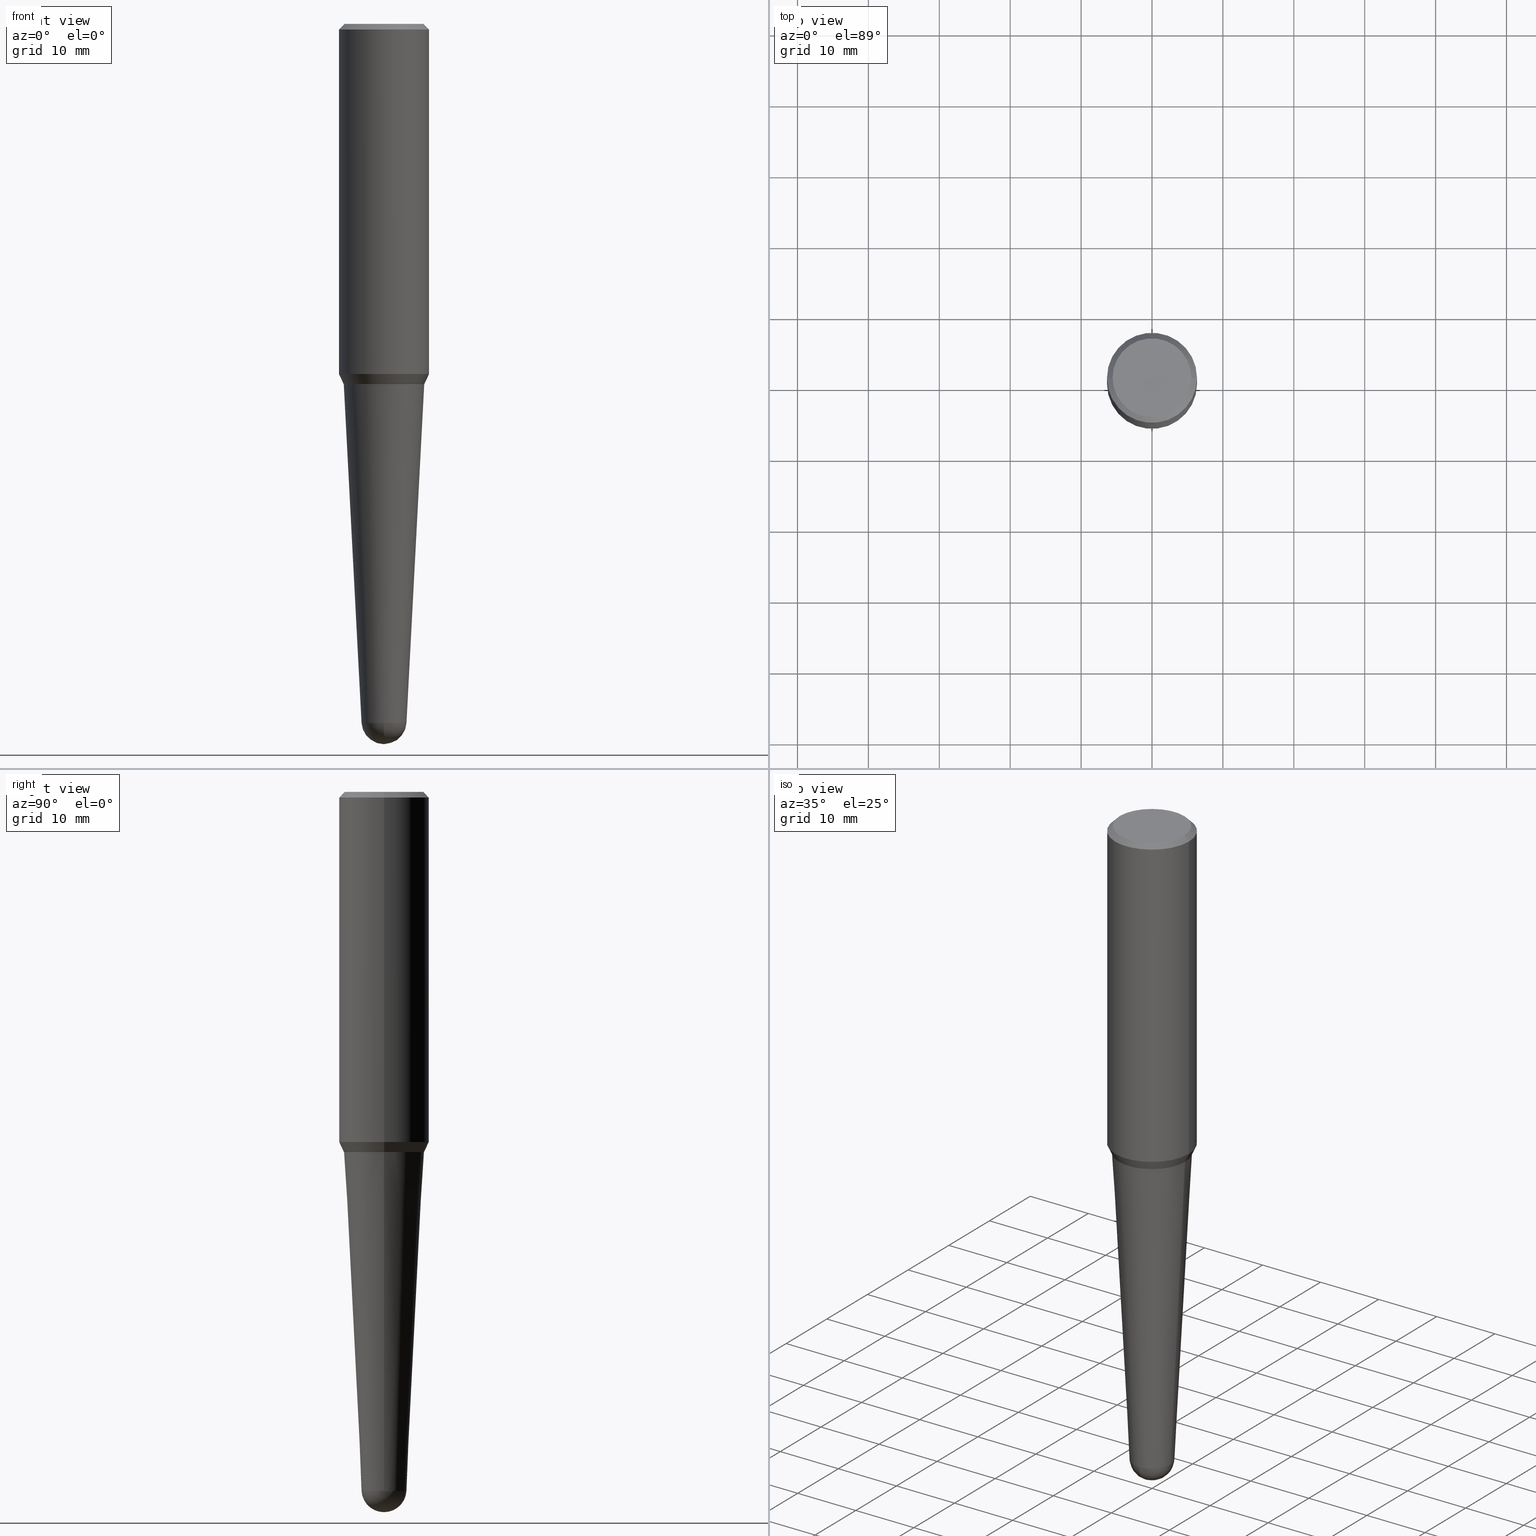
[diagram: canonical four-view strip — front | top / right | iso, engineering-drawing reading convention]
A machine part, canonical four-view strip (front | top / right | iso — engineering-drawing reading convention). The complete STEP part file that produces these views, byte-faithful:
ISO-10303-21;
HEADER;
FILE_DESCRIPTION (( 'STEP AP203' ),
    '1' );
FILE_NAME ('32486.STEP',
    '2024-03-04T15:26:53',
    ( '' ),
    ( '' ),
    'SwSTEP 2.0',
    'SolidWorks 2023',
    '' );
FILE_SCHEMA (( 'CONFIG_CONTROL_DESIGN' ));
ENDSEC;

DATA;
#1 = CARTESIAN_POINT ( 'NONE',  ( 8.716740962533960207E-16, 0.1248286918443085453, -3.881541994530368633 ) ) ;
#2 = ORIENTED_EDGE ( 'NONE', *, *, #371, .F. ) ;
#3 = CARTESIAN_POINT ( 'NONE',  ( -8.869612020440932231E-16, -0.1248286918443352322, -3.881541994530367301 ) ) ;
#4 = VECTOR ( 'NONE', #54, 39.37007874015748854 ) ;
#5 = VERTEX_POINT ( 'NONE', #440 ) ;
#6 = DIRECTION ( 'NONE',  ( 0.7071067811865474617, -2.468850131082256666E-15, 0.7071067811865474617 ) ) ;
#7 = EDGE_LOOP ( 'NONE', ( #44, #151 ) ) ;
#8 = DIRECTION ( 'NONE',  ( -1.000000000000000000, 6.982962677686265922E-15, -4.876176775795935793E-29 ) ) ;
#9 = ORIENTED_EDGE ( 'NONE', *, *, #235, .T. ) ;
#10 = CARTESIAN_POINT ( 'NONE',  ( -0.2239361294054428020, -5.389151550279469885E-15, -2.000000000000000000 ) ) ;
#11 = AXIS2_PLACEMENT_3D ( 'NONE', #27, #342, #416 ) ;
#12 = ORIENTED_EDGE ( 'NONE', *, *, #67, .F. ) ;
#13 = CARTESIAN_POINT ( 'NONE',  ( 9.492189867521652556E-29, -1.355233143983878169E-14, -3.881541994530368189 ) ) ;
#14 = ORIENTED_EDGE ( 'NONE', *, *, #386, .F. ) ;
#15 = ORIENTED_EDGE ( 'NONE', *, *, #218, .F. ) ;
#16 = PERSON_AND_ORGANIZATION ( #69, #143 ) ;
#17 = FACE_OUTER_BOUND ( 'NONE', #156, .T. ) ;
#18 = ORIENTED_EDGE ( 'NONE', *, *, #154, .F. ) ;
#19 = EDGE_CURVE ( 'NONE', #383, #5, #138, .T. ) ;
#20 = PERSON_AND_ORGANIZATION ( #69, #143 ) ;
#21 = PRODUCT_DEFINITION ( 'UNKNOWN', '', #387, #425 ) ;
#22 = CARTESIAN_POINT ( 'NONE',  ( 7.642090019328565002E-31, -1.091087918388484967E-16, -0.03125000000000005551 ) ) ;
#23 = CONICAL_SURFACE ( 'NONE', #452, 0.2239361294054428020, 0.7853981633974482790 ) ;
#24 = DIRECTION ( 'NONE',  ( 1.000000000000000000, -6.982962677686266711E-15, 4.880466792705916279E-29 ) ) ;
#25 = DIRECTION ( 'NONE',  ( -2.445468806185136597E-29, 3.491481338843145583E-15, 1.000000000000000000 ) ) ;
#26 = DIRECTION ( 'NONE',  ( 0.7071067811865489050, -7.319954787623260779E-15, -0.7071067811865461294 ) ) ;
#27 = CARTESIAN_POINT ( 'NONE',  ( 4.890937612370273194E-29, -6.982962677686291165E-15, -2.000000000000000000 ) ) ;
#28 = CONICAL_SURFACE ( 'NONE', #449, 0.2500000000000000000, 0.7853981633974502774 ) ;
#29 = CARTESIAN_POINT ( 'NONE',  ( -0.2500000000000001110, 1.776356839400253620E-15, 5.931196827434174486E-16 ) ) ;
#30 = EDGE_CURVE ( 'NONE', #258, #359, #417, .T. ) ;
#31 = DIRECTION ( 'NONE',  ( 1.000000000000000000, -6.982962677686265922E-15, 0.000000000000000000 ) ) ;
#32 = EDGE_CURVE ( 'NONE', #5, #92, #91, .T. ) ;
#33 = CIRCLE ( 'NONE', #303, 0.2244361294054426914 ) ;
#34 = DIRECTION ( 'NONE',  ( -2.445468806185136877E-29, 3.491481338843145188E-15, 1.000000000000000000 ) ) ;
#35 = ORIENTED_EDGE ( 'NONE', *, *, #166, .F. ) ;
#36 = LINE ( 'NONE', #458, #252 ) ;
#37 = ORIENTED_EDGE ( 'NONE', *, *, #335, .F. ) ;
#38 = CARTESIAN_POINT ( 'NONE',  ( 4.890937612370273194E-29, -6.982962677686291165E-15, -2.000000000000000000 ) ) ;
#39 = PERSON_AND_ORGANIZATION ( #69, #143 ) ;
#40 = FACE_OUTER_BOUND ( 'NONE', #428, .T. ) ;
#41 = VECTOR ( 'NONE', #79, 39.37007874015748854 ) ;
#42 = CARTESIAN_POINT ( 'NONE',  ( 0.2500000000000001110, -1.745740669421565494E-15, 5.931196827434418047E-16 ) ) ;
#43 = CIRCLE ( 'NONE', #247, 0.2187500000000002498 ) ;
#44 = ORIENTED_EDGE ( 'NONE', *, *, #408, .T. ) ;
#45 = PERSON_AND_ORGANIZATION ( #69, #143 ) ;
#46 = ADVANCED_FACE ( 'NONE', ( #94 ), #85, .T. ) ;
#47 = ORIENTED_EDGE ( 'NONE', *, *, #459, .T. ) ;
#48 = DIRECTION ( 'NONE',  ( 1.000000000000000000, -6.982962677686265133E-15, 0.000000000000000000 ) ) ;
#49 = LOCAL_TIME ( 10, 26, 53.00000000000000000, #405 ) ;
#50 = EDGE_LOOP ( 'NONE', ( #398, #292, #308, #129, #208 ) ) ;
#51 = CALENDAR_DATE ( 2024, 4, 3 ) ;
#52 = ORIENTED_EDGE ( 'NONE', *, *, #371, .T. ) ;
#53 = CARTESIAN_POINT ( 'NONE',  ( 0.000000000000000000, 0.000000000000000000, 0.000000000000000000 ) ) ;
#54 = DIRECTION ( 'NONE',  ( -0.7071067811865474617, 7.493145998870352582E-15, 0.7071067811865474617 ) ) ;
#55 = PERSON_AND_ORGANIZATION_ROLE ( 'design_owner' ) ;
#56 = CARTESIAN_POINT ( 'NONE',  ( 9.770155035872819834E-29, -1.310851785081028701E-14, -3.875000000000000000 ) ) ;
#57 = AXIS2_PLACEMENT_3D ( 'NONE', #145, #419, #108 ) ;
#58 = CC_DESIGN_APPROVAL ( #341, ( #21 ) ) ;
#59 = DIRECTION ( 'NONE',  ( -2.445468806185136597E-29, 3.491481338843145583E-15, 1.000000000000000000 ) ) ;
#60 = AXIS2_PLACEMENT_3D ( 'NONE', #162, #59, #192 ) ;
#61 = DIRECTION ( 'NONE',  ( -1.000000000000000000, 6.982962677686266711E-15, 0.000000000000000000 ) ) ;
#62 = ADVANCED_FACE ( 'NONE', ( #99 ), #28, .T. ) ;
#63 = CARTESIAN_POINT ( 'NONE',  ( 0.2500000000000000000, -1.854849461260415384E-15, -0.03125000000000005551 ) ) ;
#64 = CIRCLE ( 'NONE', #110, 0.2239361294054428020 ) ;
#65 = LOCAL_TIME ( 10, 26, 53.00000000000000000, #368 ) ;
#66 = DIRECTION ( 'NONE',  ( -2.445468806185136597E-29, 3.491481338843145583E-15, 1.000000000000000000 ) ) ;
#67 = EDGE_CURVE ( 'NONE', #400, #317, #43, .T. ) ;
#68 = DIRECTION ( 'NONE',  ( -2.445468806185136597E-29, 3.491481338843145583E-15, 1.000000000000000000 ) ) ;
#69 = PERSON ( 'UNSPECIFIED', 'UNSPECIFIED', 'UNSPECIFIED', ('UNSPECIFIED'), ('UNSPECIFIED'), ('UNSPECIFIED') ) ;
#70 = DIRECTION ( 'NONE',  ( 1.000000000000000000, -6.982962677686264344E-15, 0.000000000000000000 ) ) ;
#71 = EDGE_LOOP ( 'NONE', ( #9, #273, #35, #186 ) ) ;
#72 = AXIS2_PLACEMENT_3D ( 'NONE', #246, #282, #160 ) ;
#73 = VECTOR ( 'NONE', #424, 39.37007874015748143 ) ;
#74 = SPHERICAL_SURFACE ( 'NONE', #360, 0.1249999999999999029 ) ;
#75 = CARTESIAN_POINT ( 'NONE',  ( -0.2244361294054426914, -5.386502323105358684E-15, -1.999500000000000055 ) ) ;
#76 = ORIENTED_EDGE ( 'NONE', *, *, #204, .F. ) ;
#77 = CARTESIAN_POINT ( 'NONE',  ( 0.2187500000000002498, -1.662483614147128641E-15, -4.394532330998037149E-16 ) ) ;
#78 = ORIENTED_EDGE ( 'NONE', *, *, #299, .T. ) ;
#79 = DIRECTION ( 'NONE',  ( -0.4226182617406884501, 6.167240084480778447E-15, 0.9063077870366550437 ) ) ;
#80 = CIRCLE ( 'NONE', #238, 0.1249999999999999029 ) ;
#81 = ORIENTED_EDGE ( 'NONE', *, *, #148, .F. ) ;
#82 = EDGE_CURVE ( 'NONE', #391, #137, #191, .T. ) ;
#83 = EDGE_CURVE ( 'NONE', #251, #333, #334, .T. ) ;
#84 = PLANE ( 'NONE',  #265 ) ;
#85 = CONICAL_SURFACE ( 'NONE', #454, 0.1248286918443221316, 0.05235987755982991765 ) ;
#86 = APPROVAL_STATUS ( 'not_yet_approved' ) ;
#87 = CARTESIAN_POINT ( 'NONE',  ( 4.890937612370273194E-29, -6.982962677686291165E-15, -2.000000000000000000 ) ) ;
#88 = EDGE_LOOP ( 'NONE', ( #188, #222, #76, #126 ) ) ;
#89 = APPROVAL_DATE_TIME ( #399, #184 ) ;
#90 = ORIENTED_EDGE ( 'NONE', *, *, #315, .F. ) ;
#91 = LINE ( 'NONE', #95, #380 ) ;
#92 = VERTEX_POINT ( 'NONE', #168 ) ;
#93 = DATE_TIME_ROLE ( 'creation_date' ) ;
#94 = FACE_OUTER_BOUND ( 'NONE', #347, .T. ) ;
#95 = CARTESIAN_POINT ( 'NONE',  ( 0.1248286918443221316, -1.442400553609208551E-14, -3.881541994530368189 ) ) ;
#96 = CONICAL_SURFACE ( 'NONE', #136, 0.2239361294054428020, 0.7853981633974482790 ) ;
#97 = CC_DESIGN_APPROVAL ( #184, ( #387 ) ) ;
#98 = EDGE_CURVE ( 'NONE', #357, #383, #241, .T. ) ;
#99 = FACE_OUTER_BOUND ( 'NONE', #325, .T. ) ;
#100 = CARTESIAN_POINT ( 'NONE',  ( -0.2239361294054428020, -5.391800777453579508E-15, -2.000000000000000000 ) ) ;
#101 = AXIS2_PLACEMENT_3D ( 'NONE', #53, #161, #323 ) ;
#102 = DIRECTION ( 'NONE',  ( 1.000000000000000000, -6.982962677686266711E-15, 0.000000000000000000 ) ) ;
#103 = EDGE_CURVE ( 'NONE', #216, #251, #144, .T. ) ;
#104 = CC_DESIGN_PERSON_AND_ORGANIZATION_ASSIGNMENT ( #155, #152, ( #387 ) ) ;
#105 = AXIS2_PLACEMENT_3D ( 'NONE', #107, #236, #174 ) ;
#106 = CARTESIAN_POINT ( 'NONE',  ( 4.889714877967180392E-29, -6.981216937016869662E-15, -1.999500000000000055 ) ) ;
#107 = CARTESIAN_POINT ( 'NONE',  ( 7.642090019328565002E-31, -1.091087918388484967E-16, -0.03125000000000005551 ) ) ;
#108 = DIRECTION ( 'NONE',  ( 1.000000000000000000, -6.982962677686265922E-15, 0.000000000000000000 ) ) ;
#109 = EDGE_LOOP ( 'NONE', ( #433, #278, #37, #114 ) ) ;
#110 = AXIS2_PLACEMENT_3D ( 'NONE', #171, #300, #304 ) ;
#111 = DIRECTION ( 'NONE',  ( 6.982962677686265922E-15, 1.000000000000000000, -4.370956789862825094E-15 ) ) ;
#112 = ORIENTED_EDGE ( 'NONE', *, *, #30, .T. ) ;
#113 = DIRECTION ( 'NONE',  ( -2.445468806185136597E-29, 3.491481338843145583E-15, 1.000000000000000000 ) ) ;
#114 = ORIENTED_EDGE ( 'NONE', *, *, #19, .F. ) ;
#115 = CALENDAR_DATE ( 2024, 4, 3 ) ;
#116 = ADVANCED_FACE ( 'NONE', ( #135 ), #96, .T. ) ;
#117 = EDGE_LOOP ( 'NONE', ( #364, #354 ) ) ;
#118 = EDGE_CURVE ( 'NONE', #391, #447, #412, .T. ) ;
#119 = DATE_AND_TIME ( #115, #372 ) ;
#120 = AXIS2_PLACEMENT_3D ( 'NONE', #259, #132, #228 ) ;
#121 = LOCAL_TIME ( 10, 26, 53.00000000000000000, #322 ) ;
#122 = EDGE_LOOP ( 'NONE', ( #14, #311, #159, #2 ) ) ;
#123 = FACE_OUTER_BOUND ( 'NONE', #88, .T. ) ;
#124 = CLOSED_SHELL ( 'NONE', ( #62, #446, #393, #116, #373, #226, #279, #176, #140, #418 ) ) ;
#125 = CARTESIAN_POINT ( 'NONE',  ( 5.373345866614013448E-45, -7.671713813311452234E-31, -2.197266165499074041E-16 ) ) ;
#126 = ORIENTED_EDGE ( 'NONE', *, *, #459, .F. ) ;
#127 = APPROVAL_STATUS ( 'not_yet_approved' ) ;
#128 = AXIS2_PLACEMENT_3D ( 'NONE', #139, #421, #346 ) ;
#129 = ORIENTED_EDGE ( 'NONE', *, *, #32, .T. ) ;
#130 = ORIENTED_EDGE ( 'NONE', *, *, #299, .F. ) ;
#131 = PERSON_AND_ORGANIZATION_ROLE ( 'creator' ) ;
#132 = DIRECTION ( 'NONE',  ( -2.445468806185136597E-29, 3.491481338843145583E-15, 1.000000000000000000 ) ) ;
#133 = CARTESIAN_POINT ( 'NONE',  ( 4.890937612370273194E-29, -6.982962677686291165E-15, -2.000000000000000000 ) ) ;
#134 = ADVANCED_FACE ( 'NONE', ( #261 ), #369, .F. ) ;
#135 = FACE_OUTER_BOUND ( 'NONE', #179, .T. ) ;
#136 = AXIS2_PLACEMENT_3D ( 'NONE', #133, #167, #297 ) ;
#137 = VERTEX_POINT ( 'NONE', #376 ) ;
#138 = CIRCLE ( 'NONE', #215, 0.1248286918443221316 ) ;
#139 = CARTESIAN_POINT ( 'NONE',  ( 9.492189867521652556E-29, -1.355233143983878169E-14, -3.881541994530368189 ) ) ;
#140 = ADVANCED_FACE ( 'NONE', ( #17 ), #211, .T. ) ;
#141 = DIRECTION ( 'NONE',  ( -0.7071067811865489050, 2.468850131082271655E-15, -0.7071067811865461294 ) ) ;
#142 = PRODUCT ( '32486', '32486', '', ( #326 ) ) ;
#143 = ORGANIZATION ( 'UNSPECIFIED', 'UNSPECIFIED', '' ) ;
#144 = CIRCLE ( 'NONE', #287, 0.1248286918443221316 ) ;
#145 = CARTESIAN_POINT ( 'NONE',  ( 4.889714877967180392E-29, -6.981216937016869662E-15, -1.999500000000000055 ) ) ;
#146 = DIRECTION ( 'NONE',  ( 6.982962677686265922E-15, 1.000000000000000000, 0.000000000000000000 ) ) ;
#147 = ORIENTED_EDGE ( 'NONE', *, *, #335, .T. ) ;
#148 = EDGE_CURVE ( 'NONE', #400, #359, #200, .T. ) ;
#149 = DIRECTION ( 'NONE',  ( 1.000000000000000000, -6.982962677686266711E-15, 4.880466792705916279E-29 ) ) ;
#150 = DIRECTION ( 'NONE',  ( 1.000000000000000000, -6.982962677686269866E-15, 0.000000000000000000 ) ) ;
#151 = ORIENTED_EDGE ( 'NONE', *, *, #277, .T. ) ;
#152 = PERSON_AND_ORGANIZATION_ROLE ( 'creator' ) ;
#153 = ADVANCED_FACE ( 'NONE', ( #445 ), #422, .T. ) ;
#154 = EDGE_CURVE ( 'NONE', #357, #216, #80, .T. ) ;
#155 = PERSON_AND_ORGANIZATION ( #69, #143 ) ;
#156 = EDGE_LOOP ( 'NONE', ( #81, #15, #78, #112 ) ) ;
#157 = FACE_OUTER_BOUND ( 'NONE', #177, .T. ) ;
#158 = AXIS2_PLACEMENT_3D ( 'NONE', #209, #397, #313 ) ;
#159 = ORIENTED_EDGE ( 'NONE', *, *, #248, .T. ) ;
#160 = DIRECTION ( 'NONE',  ( 1.000000000000000000, -6.982962677686265922E-15, 0.000000000000000000 ) ) ;
#161 = DIRECTION ( 'NONE',  ( 0.000000000000000000, 0.000000000000000000, 1.000000000000000000 ) ) ;
#162 = CARTESIAN_POINT ( 'NONE',  ( 4.890937612370273194E-29, -6.982962677686291165E-15, -2.000000000000000000 ) ) ;
#163 = VECTOR ( 'NONE', #263, 39.37007874015748854 ) ;
#164 = CARTESIAN_POINT ( 'NONE',  ( 0.2500000000000000000, -1.824233291281731597E-15, -0.03125000000000005551 ) ) ;
#165 = DIRECTION ( 'NONE',  ( 1.000000000000000000, -6.982962677686266711E-15, 0.000000000000000000 ) ) ;
#166 = EDGE_CURVE ( 'NONE', #404, #219, #431, .T. ) ;
#167 = DIRECTION ( 'NONE',  ( -2.445468806185136597E-29, 3.491481338843145583E-15, 1.000000000000000000 ) ) ;
#168 = CARTESIAN_POINT ( 'NONE',  ( 0.2234361294054428293, -8.543208830171176949E-15, -2.000000000000000000 ) ) ;
#169 = AXIS2_PLACEMENT_3D ( 'NONE', #328, #230, #231 ) ;
#170 = CC_DESIGN_SECURITY_CLASSIFICATION ( #361, ( #387 ) ) ;
#171 = CARTESIAN_POINT ( 'NONE',  ( 4.890937612370273194E-29, -6.982962677686291165E-15, -2.000000000000000000 ) ) ;
#172 = DIRECTION ( 'NONE',  ( -2.445468806185136597E-29, 3.491481338843145583E-15, 1.000000000000000000 ) ) ;
#173 = ADVANCED_BREP_SHAPE_REPRESENTATION ( '32486', ( #414, #253, #101 ), #366 ) ;
#174 = DIRECTION ( 'NONE',  ( 1.000000000000000000, -6.982962677686266711E-15, 0.000000000000000000 ) ) ;
#175 = CARTESIAN_POINT ( 'NONE',  ( 4.890937612370273194E-29, -6.982962677686291165E-15, -2.000000000000000000 ) ) ;
#176 = ADVANCED_FACE ( 'NONE', ( #268 ), #298, .T. ) ;
#177 = EDGE_LOOP ( 'NONE', ( #90, #453 ) ) ;
#178 = FACE_OUTER_BOUND ( 'NONE', #109, .T. ) ;
#179 = EDGE_LOOP ( 'NONE', ( #437, #269, #284, #239 ) ) ;
#180 =( LENGTH_UNIT ( ) NAMED_UNIT ( * ) SI_UNIT ( $, .METRE. ) );
#181 = ORIENTED_EDGE ( 'NONE', *, *, #82, .T. ) ;
#182 = CC_DESIGN_PERSON_AND_ORGANIZATION_ASSIGNMENT ( #223, #55, ( #142 ) ) ;
#183 = PERSON_AND_ORGANIZATION ( #69, #143 ) ;
#184 = APPROVAL ( #127, 'UNSPECIFIED' ) ;
#185 = CYLINDRICAL_SURFACE ( 'NONE', #158, 0.2500000000000001110 ) ;
#186 = ORIENTED_EDGE ( 'NONE', *, *, #248, .F. ) ;
#187 = APPROVAL_DATE_TIME ( #119, #352 ) ;
#188 = ORIENTED_EDGE ( 'NONE', *, *, #166, .T. ) ;
#189 = VECTOR ( 'NONE', #26, 39.37007874015748143 ) ;
#190 = CARTESIAN_POINT ( 'NONE',  ( 0.2500000000000002776, -8.535547974688762814E-15, -1.944678102594958879 ) ) ;
#191 = CIRCLE ( 'NONE', #60, 0.2239361294054428020 ) ;
#192 = DIRECTION ( 'NONE',  ( 1.000000000000000000, -6.982962677686264344E-15, 0.000000000000000000 ) ) ;
#193 = DIRECTION ( 'NONE',  ( -2.445468806185136597E-29, 3.491481338843145583E-15, 1.000000000000000000 ) ) ;
#194 = ORIENTED_EDGE ( 'NONE', *, *, #407, .F. ) ;
#195 = CALENDAR_DATE ( 2024, 4, 3 ) ;
#196 = AXIS2_PLACEMENT_3D ( 'NONE', #307, #456, #378 ) ;
#197 = DIRECTION ( 'NONE',  ( 1.000000000000000000, -6.982962677686265922E-15, 4.883557194083112340E-29 ) ) ;
#198 = LOCAL_TIME ( 10, 26, 53.00000000000000000, #363 ) ;
#199 = DIRECTION ( 'NONE',  ( 1.000000000000000000, -6.982962677686269866E-15, 0.000000000000000000 ) ) ;
#200 = LINE ( 'NONE', #164, #189 ) ;
#201 = DIRECTION ( 'NONE',  ( -2.445468806185136597E-29, 3.491481338843145583E-15, 1.000000000000000000 ) ) ;
#202 = DIRECTION ( 'NONE',  ( -2.445468806185136597E-29, 3.491481338843145583E-15, 1.000000000000000000 ) ) ;
#203 = DIRECTION ( 'NONE',  ( -2.445468806185136597E-29, 3.491481338843145583E-15, 1.000000000000000000 ) ) ;
#204 = EDGE_CURVE ( 'NONE', #359, #258, #457, .T. ) ;
#205 = LINE ( 'NONE', #339, #163 ) ;
#206 = CIRCLE ( 'NONE', #271, 0.2500000000000002776 ) ;
#207 = CARTESIAN_POINT ( 'NONE',  ( 9.770155035872819834E-29, -1.310851785081028701E-14, -3.875000000000000000 ) ) ;
#208 = ORIENTED_EDGE ( 'NONE', *, *, #277, .F. ) ;
#209 = CARTESIAN_POINT ( 'NONE',  ( -1.450455682483482035E-44, 2.070866303999251778E-30, 5.931196827434296760E-16 ) ) ;
#210 = UNCERTAINTY_MEASURE_WITH_UNIT (LENGTH_MEASURE( 1.000000000000000082E-05 ), #353, 'distance_accuracy_value', 'NONE');
#211 = CONICAL_SURFACE ( 'NONE', #385, 0.2500000000000000000, 0.7853981633974502774 ) ;
#212 = SHAPE_DEFINITION_REPRESENTATION ( #381, #173 ) ;
#213 = LENGTH_MEASURE_WITH_UNIT ( LENGTH_MEASURE( 0.02539999999999999897 ), #180 );
#214 = ORIENTED_EDGE ( 'NONE', *, *, #32, .F. ) ;
#215 = AXIS2_PLACEMENT_3D ( 'NONE', #229, #409, #403 ) ;
#216 = VERTEX_POINT ( 'NONE', #1 ) ;
#217 = CARTESIAN_POINT ( 'NONE',  ( 9.770155035872819834E-29, -1.310851785081028701E-14, -3.875000000000000000 ) ) ;
#218 = EDGE_CURVE ( 'NONE', #317, #400, #233, .T. ) ;
#219 = VERTEX_POINT ( 'NONE', #343 ) ;
#220 = VECTOR ( 'NONE', #6, 39.37007874015748854 ) ;
#221 = APPLICATION_PROTOCOL_DEFINITION ( 'international standard', 'config_control_design', 1994, #331 ) ;
#222 = ORIENTED_EDGE ( 'NONE', *, *, #295, .T. ) ;
#223 = PERSON_AND_ORGANIZATION ( #69, #143 ) ;
#224 = CARTESIAN_POINT ( 'NONE',  ( 1.074669173322802939E-44, -1.534342762662290622E-30, -4.394532330998148576E-16 ) ) ;
#225 = CC_DESIGN_PERSON_AND_ORGANIZATION_ASSIGNMENT ( #256, #131, ( #21 ) ) ;
#226 = ADVANCED_FACE ( 'NONE', ( #382 ), #23, .T. ) ;
#227 = APPROVAL_ROLE ( '' ) ;
#228 = DIRECTION ( 'NONE',  ( 1.000000000000000000, -6.982962677686269866E-15, 0.000000000000000000 ) ) ;
#229 = CARTESIAN_POINT ( 'NONE',  ( 9.492189867521652556E-29, -1.355233143983878169E-14, -3.881541994530368189 ) ) ;
#230 = DIRECTION ( 'NONE',  ( 2.438088387897960049E-29, -3.491481338843145188E-15, -1.000000000000000000 ) ) ;
#231 = DIRECTION ( 'NONE',  ( -1.000000000000000000, 6.982962677686265922E-15, -4.876176775795935793E-29 ) ) ;
#232 = CARTESIAN_POINT ( 'NONE',  ( -0.2500000000000000000, -1.673101209152769590E-15, -0.03125000000000005551 ) ) ;
#233 = CIRCLE ( 'NONE', #245, 0.2187500000000002498 ) ;
#234 = DIRECTION ( 'NONE',  ( 1.000000000000000000, -6.982962677686267499E-15, 4.852736867747363965E-29 ) ) ;
#235 = EDGE_CURVE ( 'NONE', #462, #447, #33, .T. ) ;
#236 = DIRECTION ( 'NONE',  ( -2.445468806185136597E-29, 3.491481338843145583E-15, 1.000000000000000000 ) ) ;
#237 = FACE_OUTER_BOUND ( 'NONE', #122, .T. ) ;
#238 = AXIS2_PLACEMENT_3D ( 'NONE', #56, #197, #146 ) ;
#239 = ORIENTED_EDGE ( 'NONE', *, *, #460, .F. ) ;
#240 = CARTESIAN_POINT ( 'NONE',  ( 1.008118342595333239E-28, -1.353729897567100931E-14, -4.000000000000000000 ) ) ;
#241 = CIRCLE ( 'NONE', #338, 0.1249999999999999029 ) ;
#242 = LINE ( 'NONE', #75, #41 ) ;
#243 = ORIENTED_EDGE ( 'NONE', *, *, #295, .F. ) ;
#244 = ORIENTED_EDGE ( 'NONE', *, *, #460, .T. ) ;
#245 = AXIS2_PLACEMENT_3D ( 'NONE', #461, #202, #149 ) ;
#246 = CARTESIAN_POINT ( 'NONE',  ( 4.889714877967180392E-29, -6.981216937016869662E-15, -1.999500000000000055 ) ) ;
#247 = AXIS2_PLACEMENT_3D ( 'NONE', #224, #451, #24 ) ;
#248 = EDGE_CURVE ( 'NONE', #462, #404, #205, .T. ) ;
#249 = CARTESIAN_POINT ( 'NONE',  ( -0.2244361294054426914, -5.386502323105358684E-15, -1.999500000000000055 ) ) ;
#250 = APPROVAL_DATE_TIME ( #285, #341 ) ;
#251 = VERTEX_POINT ( 'NONE', #455 ) ;
#252 = VECTOR ( 'NONE', #141, 39.37007874015748143 ) ;
#253 = MANIFOLD_SOLID_BREP ( 'Body-Move/Copy2[2]', #124 ) ;
#254 = DIRECTION ( 'NONE',  ( 0.05233595624294386239, 3.121236355867708811E-15, 0.9986295347545738332 ) ) ;
#255 = CC_DESIGN_DATE_AND_TIME_ASSIGNMENT ( #439, #93, ( #21 ) ) ;
#256 = PERSON_AND_ORGANIZATION ( #69, #143 ) ;
#257 = DIRECTION ( 'NONE',  ( -0.05233595624294386239, 3.858565720288030357E-15, 0.9986295347545738332 ) ) ;
#258 = VERTEX_POINT ( 'NONE', #232 ) ;
#259 = CARTESIAN_POINT ( 'NONE',  ( 9.492189867521652556E-29, -1.355233143983878169E-14, -3.881541994530368189 ) ) ;
#260 = CIRCLE ( 'NONE', #329, 0.1248286918443221316 ) ;
#261 = FACE_OUTER_BOUND ( 'NONE', #7, .T. ) ;
#262 = CARTESIAN_POINT ( 'NONE',  ( -0.1248286918443221316, -1.266537023779459114E-14, -3.881541994530368189 ) ) ;
#263 = DIRECTION ( 'NONE',  ( 0.4226182617406884501, 2.132291770428352764E-16, 0.9063077870366550437 ) ) ;
#264 = CARTESIAN_POINT ( 'NONE',  ( -0.2234361294054428293, -5.395353491132379618E-15, -2.000000000000000000 ) ) ;
#265 = AXIS2_PLACEMENT_3D ( 'NONE', #125, #392, #8 ) ;
#266 = PRODUCT_RELATED_PRODUCT_CATEGORY ( 'detail', '', ( #142 ) ) ;
#267 = DIRECTION ( 'NONE',  ( 1.000000000000000000, -6.982962677686265922E-15, 0.000000000000000000 ) ) ;
#268 = FACE_OUTER_BOUND ( 'NONE', #423, .T. ) ;
#269 = ORIENTED_EDGE ( 'NONE', *, *, #118, .T. ) ;
#270 = LINE ( 'NONE', #29, #410 ) ;
#271 = AXIS2_PLACEMENT_3D ( 'NONE', #379, #201, #102 ) ;
#272 = FACE_OUTER_BOUND ( 'NONE', #117, .T. ) ;
#273 = ORIENTED_EDGE ( 'NONE', *, *, #386, .T. ) ;
#274 = DATE_TIME_ROLE ( 'classification_date' ) ;
#275 = PERSON_AND_ORGANIZATION_ROLE ( 'classification_officer' ) ;
#276 = LINE ( 'NONE', #348, #220 ) ;
#277 = EDGE_CURVE ( 'NONE', #333, #92, #350, .T. ) ;
#278 = ORIENTED_EDGE ( 'NONE', *, *, #154, .T. ) ;
#279 = ADVANCED_FACE ( 'NONE', ( #237 ), #296, .T. ) ;
#280 = AXIS2_PLACEMENT_3D ( 'NONE', #217, #356, #283 ) ;
#281 = SECURITY_CLASSIFICATION_LEVEL ( 'unclassified' ) ;
#282 = DIRECTION ( 'NONE',  ( -2.445468806185136597E-29, 3.491481338843145583E-15, 1.000000000000000000 ) ) ;
#283 = DIRECTION ( 'NONE',  ( 6.982962677686265922E-15, 1.000000000000000000, -4.370956789862825094E-15 ) ) ;
#284 = ORIENTED_EDGE ( 'NONE', *, *, #235, .F. ) ;
#285 = DATE_AND_TIME ( #330, #198 ) ;
#286 = CARTESIAN_POINT ( 'NONE',  ( 7.642090019328565002E-31, -1.091087918388484967E-16, -0.03125000000000005551 ) ) ;
#287 = AXIS2_PLACEMENT_3D ( 'NONE', #374, #25, #450 ) ;
#288 = APPROVAL_STATUS ( 'not_yet_approved' ) ;
#289 = DIRECTION ( 'NONE',  ( 2.445468806185136597E-29, -3.491481338843145583E-15, -1.000000000000000000 ) ) ;
#290 = ORIENTED_EDGE ( 'NONE', *, *, #408, .F. ) ;
#291 = CARTESIAN_POINT ( 'NONE',  ( 7.642090019328565002E-31, -1.091087918388484967E-16, -0.03125000000000005551 ) ) ;
#292 = ORIENTED_EDGE ( 'NONE', *, *, #407, .T. ) ;
#293 = DIMENSIONAL_EXPONENTS ( 1.000000000000000000, 0.000000000000000000, 0.000000000000000000, 0.000000000000000000, 0.000000000000000000, 0.000000000000000000, 0.000000000000000000 ) ;
#294 = CARTESIAN_POINT ( 'NONE',  ( 9.492189867521652556E-29, -1.355233143983878169E-14, -3.881541994530368189 ) ) ;
#295 = EDGE_CURVE ( 'NONE', #219, #258, #270, .T. ) ;
#296 = CONICAL_SURFACE ( 'NONE', #401, 0.2244361294054426914, 0.4363323129985702820 ) ;
#297 = DIRECTION ( 'NONE',  ( 1.000000000000000000, -6.982962677686264344E-15, 0.000000000000000000 ) ) ;
#298 = CYLINDRICAL_SURFACE ( 'NONE', #442, 0.2500000000000001110 ) ;
#299 = EDGE_CURVE ( 'NONE', #317, #258, #36, .T. ) ;
#300 = DIRECTION ( 'NONE',  ( -2.445468806185136597E-29, 3.491481338843145583E-15, 1.000000000000000000 ) ) ;
#301 = CC_DESIGN_PERSON_AND_ORGANIZATION_ASSIGNMENT ( #39, #275, ( #361 ) ) ;
#302 = CARTESIAN_POINT ( 'NONE',  ( 4.889714877967180392E-29, -6.981216937016869662E-15, -1.999500000000000055 ) ) ;
#303 = AXIS2_PLACEMENT_3D ( 'NONE', #106, #68, #267 ) ;
#304 = DIRECTION ( 'NONE',  ( 1.000000000000000000, -6.982962677686264344E-15, 0.000000000000000000 ) ) ;
#305 = VECTOR ( 'NONE', #257, 39.37007874015748854 ) ;
#306 = ORIENTED_EDGE ( 'NONE', *, *, #204, .T. ) ;
#307 = CARTESIAN_POINT ( 'NONE',  ( 4.755649637967270889E-29, -6.789807305267194559E-15, -1.944678102594958879 ) ) ;
#308 = ORIENTED_EDGE ( 'NONE', *, *, #19, .T. ) ;
#309 = DIRECTION ( 'NONE',  ( -2.438088387897960049E-29, 3.491481338843145188E-15, 1.000000000000000000 ) ) ;
#310 = AXIS2_PLACEMENT_3D ( 'NONE', #38, #434, #48 ) ;
#311 = ORIENTED_EDGE ( 'NONE', *, *, #316, .T. ) ;
#312 = APPROVAL_ROLE ( '' ) ;
#313 = DIRECTION ( 'NONE',  ( 1.000000000000000000, -6.982962677686267499E-15, 4.852736867747363965E-29 ) ) ;
#314 =( NAMED_UNIT ( * ) SI_UNIT ( $, .STERADIAN. ) SOLID_ANGLE_UNIT ( ) );
#315 = EDGE_CURVE ( 'NONE', #137, #391, #64, .T. ) ;
#316 = EDGE_CURVE ( 'NONE', #447, #462, #319, .T. ) ;
#317 = VERTEX_POINT ( 'NONE', #384 ) ;
#318 = CIRCLE ( 'NONE', #310, 0.2234361294054428293 ) ;
#319 = CIRCLE ( 'NONE', #57, 0.2244361294054426914 ) ;
#320 = SPHERICAL_SURFACE ( 'NONE', #280, 0.1249999999999999029 ) ;
#321 = CLOSED_SHELL ( 'NONE', ( #46, #426, #351, #153, #134 ) ) ;
#322 = COORDINATED_UNIVERSAL_TIME_OFFSET ( 5, 0, .BEHIND. ) ;
#323 = DIRECTION ( 'NONE',  ( 1.000000000000000000, 0.000000000000000000, 0.000000000000000000 ) ) ;
#324 = CARTESIAN_POINT ( 'NONE',  ( 9.770155035872819834E-29, -1.310851785081028701E-14, -3.875000000000000000 ) ) ;
#325 = EDGE_LOOP ( 'NONE', ( #12, #441, #306, #130 ) ) ;
#326 = MECHANICAL_CONTEXT ( 'NONE', #331, 'mechanical' ) ;
#327 = ORIENTED_EDGE ( 'NONE', *, *, #30, .F. ) ;
#328 = CARTESIAN_POINT ( 'NONE',  ( 4.890937612370273194E-29, -6.982962677686291165E-15, -2.000000000000000000 ) ) ;
#329 = AXIS2_PLACEMENT_3D ( 'NONE', #13, #113, #150 ) ;
#330 = CALENDAR_DATE ( 2024, 4, 3 ) ;
#331 = APPLICATION_CONTEXT ( 'configuration controlled 3d designs of mechanical parts and assemblies' ) ;
#332 = DIRECTION ( 'NONE',  ( -1.000000000000000000, 6.982962677686266711E-15, 0.000000000000000000 ) ) ;
#333 = VERTEX_POINT ( 'NONE', #264 ) ;
#334 = LINE ( 'NONE', #262, #305 ) ;
#335 = EDGE_CURVE ( 'NONE', #5, #216, #377, .T. ) ;
#336 = ORIENTED_EDGE ( 'NONE', *, *, #103, .F. ) ;
#337 = DIRECTION ( 'NONE',  ( -1.000000000000000000, 7.105427357601001070E-15, -4.926315508542082329E-29 ) ) ;
#338 = AXIS2_PLACEMENT_3D ( 'NONE', #324, #337, #365 ) ;
#339 = CARTESIAN_POINT ( 'NONE',  ( 0.2244361294054426914, -8.548446052179440671E-15, -1.999500000000000055 ) ) ;
#340 = APPROVAL_PERSON_ORGANIZATION ( #183, #352, #312 ) ;
#341 = APPROVAL ( #288, 'UNSPECIFIED' ) ;
#342 = DIRECTION ( 'NONE',  ( -2.445468806185136597E-29, 3.491481338843145583E-15, 1.000000000000000000 ) ) ;
#343 = CARTESIAN_POINT ( 'NONE',  ( -0.2500000000000002776, -5.013450465866942516E-15, -1.944678102594958879 ) ) ;
#344 = CARTESIAN_POINT ( 'NONE',  ( -1.450455682483482035E-44, 2.070866303999251778E-30, 5.931196827434296760E-16 ) ) ;
#345 = CC_DESIGN_APPROVAL ( #352, ( #361 ) ) ;
#346 = DIRECTION ( 'NONE',  ( 1.000000000000000000, -6.982962677686269866E-15, 0.000000000000000000 ) ) ;
#347 = EDGE_LOOP ( 'NONE', ( #394, #406, #290, #214, #147 ) ) ;
#348 = CARTESIAN_POINT ( 'NONE',  ( 0.2239361294054428020, -8.546700311510019956E-15, -2.000000000000000000 ) ) ;
#349 = DIRECTION ( 'NONE',  ( 1.000000000000000000, -6.982962677686265922E-15, 4.876176775795935793E-29 ) ) ;
#350 = CIRCLE ( 'NONE', #11, 0.2234361294054428293 ) ;
#351 = ADVANCED_FACE ( 'NONE', ( #178 ), #74, .T. ) ;
#352 = APPROVAL ( #86, 'UNSPECIFIED' ) ;
#353 =( CONVERSION_BASED_UNIT ( 'INCH', #213 ) LENGTH_UNIT ( ) NAMED_UNIT ( #293 ) );
#354 = ORIENTED_EDGE ( 'NONE', *, *, #67, .T. ) ;
#355 = DATE_AND_TIME ( #429, #121 ) ;
#356 = DIRECTION ( 'NONE',  ( -1.000000000000000000, 6.982962677686265922E-15, -4.883557194083112901E-29 ) ) ;
#357 = VERTEX_POINT ( 'NONE', #240 ) ;
#358 = LINE ( 'NONE', #42, #73 ) ;
#359 = VERTEX_POINT ( 'NONE', #63 ) ;
#360 = AXIS2_PLACEMENT_3D ( 'NONE', #207, #413, #111 ) ;
#361 = SECURITY_CLASSIFICATION ( '', '', #281 ) ;
#362 = COORDINATED_UNIVERSAL_TIME_OFFSET ( 5, 0, .BEHIND. ) ;
#363 = COORDINATED_UNIVERSAL_TIME_OFFSET ( 5, 0, .BEHIND. ) ;
#364 = ORIENTED_EDGE ( 'NONE', *, *, #218, .T. ) ;
#365 = DIRECTION ( 'NONE',  ( -7.105427357601000281E-15, -1.000000000000000000, 0.000000000000000000 ) ) ;
#366 =( GEOMETRIC_REPRESENTATION_CONTEXT ( 3 ) GLOBAL_UNCERTAINTY_ASSIGNED_CONTEXT ( ( #210 ) ) GLOBAL_UNIT_ASSIGNED_CONTEXT ( ( #353, #430, #314 ) ) REPRESENTATION_CONTEXT ( 'NONE', 'WORKASPACE' ) );
#367 = EDGE_LOOP ( 'NONE', ( #435, #181, #244, #420 ) ) ;
#368 = COORDINATED_UNIVERSAL_TIME_OFFSET ( 5, 0, .BEHIND. ) ;
#369 = PLANE ( 'NONE',  #169 ) ;
#370 = AXIS2_PLACEMENT_3D ( 'NONE', #87, #309, #349 ) ;
#371 = EDGE_CURVE ( 'NONE', #219, #404, #206, .T. ) ;
#372 = LOCAL_TIME ( 10, 26, 53.00000000000000000, #362 ) ;
#373 = ADVANCED_FACE ( 'NONE', ( #157 ), #389, .F. ) ;
#374 = CARTESIAN_POINT ( 'NONE',  ( 9.492189867521652556E-29, -1.355233143983878169E-14, -3.881541994530368189 ) ) ;
#375 = DIRECTION ( 'NONE',  ( 2.445468806185136597E-29, -3.491481338843145583E-15, -1.000000000000000000 ) ) ;
#376 = CARTESIAN_POINT ( 'NONE',  ( 0.2239361294054428020, -8.546700311510019956E-15, -2.000000000000000000 ) ) ;
#377 = CIRCLE ( 'NONE', #128, 0.1248286918443221316 ) ;
#378 = DIRECTION ( 'NONE',  ( 1.000000000000000000, -6.982962677686266711E-15, 0.000000000000000000 ) ) ;
#379 = CARTESIAN_POINT ( 'NONE',  ( 4.755649637967270889E-29, -6.789807305267194559E-15, -1.944678102594958879 ) ) ;
#380 = VECTOR ( 'NONE', #254, 39.37007874015748854 ) ;
#381 = PRODUCT_DEFINITION_SHAPE ( 'NONE', 'NONE',  #21 ) ;
#382 = FACE_OUTER_BOUND ( 'NONE', #367, .T. ) ;
#383 = VERTEX_POINT ( 'NONE', #3 ) ;
#384 = CARTESIAN_POINT ( 'NONE',  ( -0.2187500000000002498, 1.582077481663294604E-15, -4.394532330998257537E-16 ) ) ;
#385 = AXIS2_PLACEMENT_3D ( 'NONE', #22, #375, #61 ) ;
#386 = EDGE_CURVE ( 'NONE', #447, #219, #242, .T. ) ;
#387 = PRODUCT_DEFINITION_FORMATION_WITH_SPECIFIED_SOURCE ( 'ANY', '', #142, .NOT_KNOWN. ) ;
#388 = APPLICATION_CONTEXT ( 'configuration controlled 3d designs of mechanical parts and assemblies' ) ;
#389 = PLANE ( 'NONE',  #370 ) ;
#390 = AXIS2_PLACEMENT_3D ( 'NONE', #286, #411, #165 ) ;
#391 = VERTEX_POINT ( 'NONE', #10 ) ;
#392 = DIRECTION ( 'NONE',  ( 2.438088387897960049E-29, -3.491481338843145188E-15, -1.000000000000000000 ) ) ;
#393 = ADVANCED_FACE ( 'NONE', ( #436 ), #415, .T. ) ;
#394 = ORIENTED_EDGE ( 'NONE', *, *, #103, .T. ) ;
#395 = CC_DESIGN_PERSON_AND_ORGANIZATION_ASSIGNMENT ( #45, #438, ( #387 ) ) ;
#396 = CARTESIAN_POINT ( 'NONE',  ( 0.2244361294054426914, -8.548446052179440671E-15, -1.999500000000000055 ) ) ;
#397 = DIRECTION ( 'NONE',  ( -2.445468806185136597E-29, 3.491481338843145583E-15, 1.000000000000000000 ) ) ;
#398 = ORIENTED_EDGE ( 'NONE', *, *, #83, .F. ) ;
#399 = DATE_AND_TIME ( #195, #65 ) ;
#400 = VERTEX_POINT ( 'NONE', #77 ) ;
#401 = AXIS2_PLACEMENT_3D ( 'NONE', #302, #172, #31 ) ;
#402 = APPLICATION_PROTOCOL_DEFINITION ( 'international standard', 'config_control_design', 1994, #388 ) ;
#403 = DIRECTION ( 'NONE',  ( 1.000000000000000000, -6.982962677686269866E-15, 0.000000000000000000 ) ) ;
#404 = VERTEX_POINT ( 'NONE', #190 ) ;
#405 = COORDINATED_UNIVERSAL_TIME_OFFSET ( 5, 0, .BEHIND. ) ;
#406 = ORIENTED_EDGE ( 'NONE', *, *, #83, .T. ) ;
#407 = EDGE_CURVE ( 'NONE', #251, #383, #260, .T. ) ;
#408 = EDGE_CURVE ( 'NONE', #92, #333, #318, .T. ) ;
#409 = DIRECTION ( 'NONE',  ( -2.445468806185136597E-29, 3.491481338843145583E-15, 1.000000000000000000 ) ) ;
#410 = VECTOR ( 'NONE', #34, 39.37007874015748143 ) ;
#411 = DIRECTION ( 'NONE',  ( -2.445468806185136597E-29, 3.491481338843145583E-15, 1.000000000000000000 ) ) ;
#412 = LINE ( 'NONE', #100, #4 ) ;
#413 = DIRECTION ( 'NONE',  ( -1.000000000000000000, 6.982962677686265922E-15, -4.883557194083112901E-29 ) ) ;
#414 = MANIFOLD_SOLID_BREP ( 'Body-Move/Copy2[1]', #321 ) ;
#415 = CONICAL_SURFACE ( 'NONE', #72, 0.2244361294054426914, 0.4363323129985702820 ) ;
#416 = DIRECTION ( 'NONE',  ( 1.000000000000000000, -6.982962677686265133E-15, 0.000000000000000000 ) ) ;
#417 = CIRCLE ( 'NONE', #390, 0.2500000000000000000 ) ;
#418 = ADVANCED_FACE ( 'NONE', ( #272 ), #84, .F. ) ;
#419 = DIRECTION ( 'NONE',  ( -2.445468806185136597E-29, 3.491481338843145583E-15, 1.000000000000000000 ) ) ;
#420 = ORIENTED_EDGE ( 'NONE', *, *, #316, .F. ) ;
#421 = DIRECTION ( 'NONE',  ( -2.445468806185136597E-29, 3.491481338843145583E-15, 1.000000000000000000 ) ) ;
#422 = CONICAL_SURFACE ( 'NONE', #120, 0.1248286918443221316, 0.05235987755982991765 ) ;
#423 = EDGE_LOOP ( 'NONE', ( #243, #52, #47, #327 ) ) ;
#424 = DIRECTION ( 'NONE',  ( -2.445468806185136877E-29, 3.491481338843145188E-15, 1.000000000000000000 ) ) ;
#425 = DESIGN_CONTEXT ( 'detailed design', #388, 'design' ) ;
#426 = ADVANCED_FACE ( 'NONE', ( #40 ), #320, .T. ) ;
#427 = ORIENTED_EDGE ( 'NONE', *, *, #98, .T. ) ;
#428 = EDGE_LOOP ( 'NONE', ( #18, #427, #194, #336 ) ) ;
#429 = CALENDAR_DATE ( 2024, 4, 3 ) ;
#430 =( NAMED_UNIT ( * ) PLANE_ANGLE_UNIT ( ) SI_UNIT ( $, .RADIAN. ) );
#431 = CIRCLE ( 'NONE', #196, 0.2500000000000002776 ) ;
#432 = APPROVAL_PERSON_ORGANIZATION ( #16, #184, #227 ) ;
#433 = ORIENTED_EDGE ( 'NONE', *, *, #98, .F. ) ;
#434 = DIRECTION ( 'NONE',  ( -2.445468806185136597E-29, 3.491481338843145583E-15, 1.000000000000000000 ) ) ;
#435 = ORIENTED_EDGE ( 'NONE', *, *, #118, .F. ) ;
#436 = FACE_OUTER_BOUND ( 'NONE', #71, .T. ) ;
#437 = ORIENTED_EDGE ( 'NONE', *, *, #315, .T. ) ;
#438 = PERSON_AND_ORGANIZATION_ROLE ( 'design_supplier' ) ;
#439 = DATE_AND_TIME ( #51, #49 ) ;
#440 = CARTESIAN_POINT ( 'NONE',  ( 0.1248286918443221316, -1.148360718313163044E-14, -3.881541994530368189 ) ) ;
#441 = ORIENTED_EDGE ( 'NONE', *, *, #148, .T. ) ;
#442 = AXIS2_PLACEMENT_3D ( 'NONE', #344, #203, #234 ) ;
#443 = APPROVAL_PERSON_ORGANIZATION ( #20, #341, #444 ) ;
#444 = APPROVAL_ROLE ( '' ) ;
#445 = FACE_OUTER_BOUND ( 'NONE', #50, .T. ) ;
#446 = ADVANCED_FACE ( 'NONE', ( #123 ), #185, .T. ) ;
#447 = VERTEX_POINT ( 'NONE', #249 ) ;
#448 = CC_DESIGN_DATE_AND_TIME_ASSIGNMENT ( #355, #274, ( #361 ) ) ;
#449 = AXIS2_PLACEMENT_3D ( 'NONE', #291, #289, #332 ) ;
#450 = DIRECTION ( 'NONE',  ( 1.000000000000000000, -6.982962677686269866E-15, 0.000000000000000000 ) ) ;
#451 = DIRECTION ( 'NONE',  ( -2.445468806185136597E-29, 3.491481338843145583E-15, 1.000000000000000000 ) ) ;
#452 = AXIS2_PLACEMENT_3D ( 'NONE', #175, #66, #70 ) ;
#453 = ORIENTED_EDGE ( 'NONE', *, *, #82, .F. ) ;
#454 = AXIS2_PLACEMENT_3D ( 'NONE', #294, #193, #199 ) ;
#455 = CARTESIAN_POINT ( 'NONE',  ( -0.1248286918443221316, -9.030361864463486955E-15, -3.881541994530368189 ) ) ;
#456 = DIRECTION ( 'NONE',  ( -2.445468806185136597E-29, 3.491481338843145583E-15, 1.000000000000000000 ) ) ;
#457 = CIRCLE ( 'NONE', #105, 0.2500000000000000000 ) ;
#458 = CARTESIAN_POINT ( 'NONE',  ( -0.2500000000000000000, 1.636631877582718169E-15, -0.03125000000000005551 ) ) ;
#459 = EDGE_CURVE ( 'NONE', #404, #359, #358, .T. ) ;
#460 = EDGE_CURVE ( 'NONE', #137, #462, #276, .T. ) ;
#461 = CARTESIAN_POINT ( 'NONE',  ( 1.074669173322802939E-44, -1.534342762662290622E-30, -4.394532330998148576E-16 ) ) ;
#462 = VERTEX_POINT ( 'NONE', #396 ) ;
ENDSEC;
END-ISO-10303-21;
